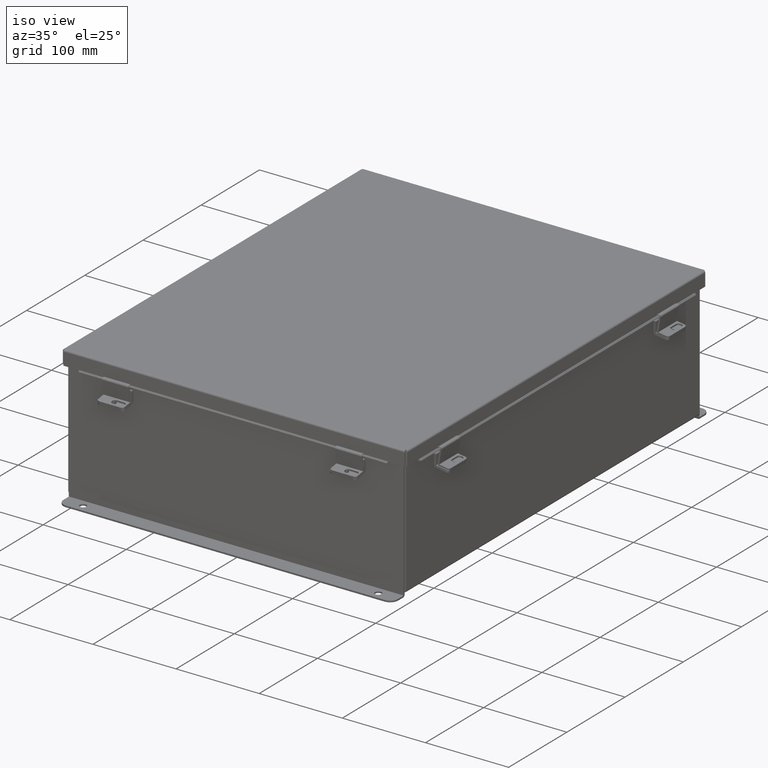
[diagram: clean part render]
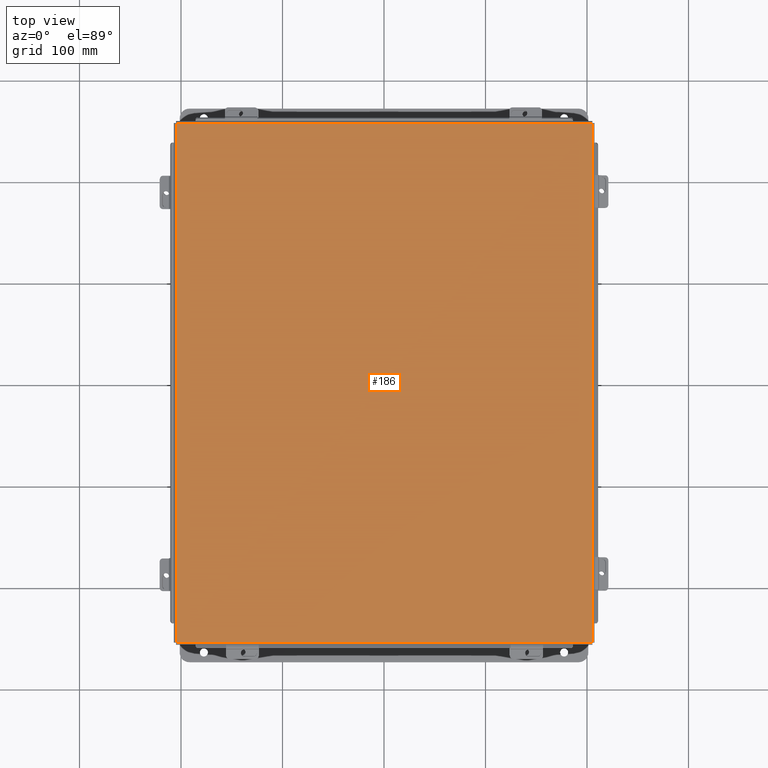
[diagram: tour spotlight — one face highlighted and labeled with its STEP entity id]
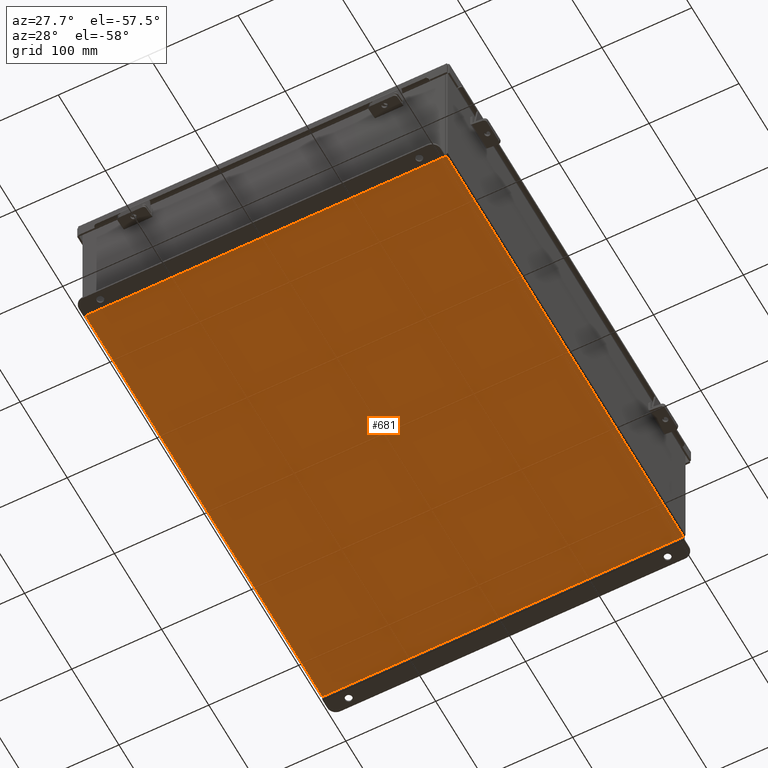
[diagram: tour spotlight — one face highlighted and labeled with its STEP entity id]
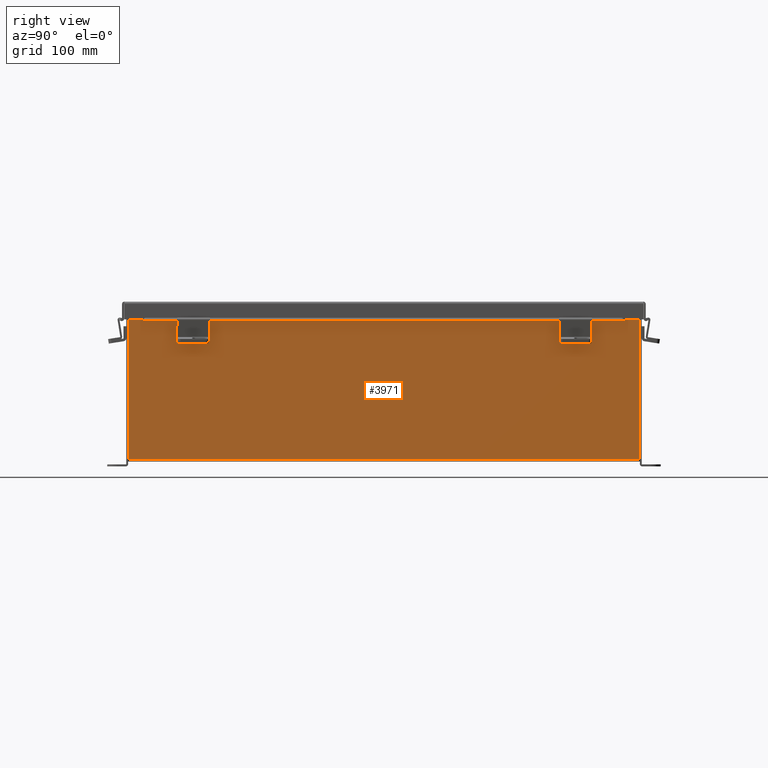
[diagram: tour spotlight — one face highlighted and labeled with its STEP entity id]
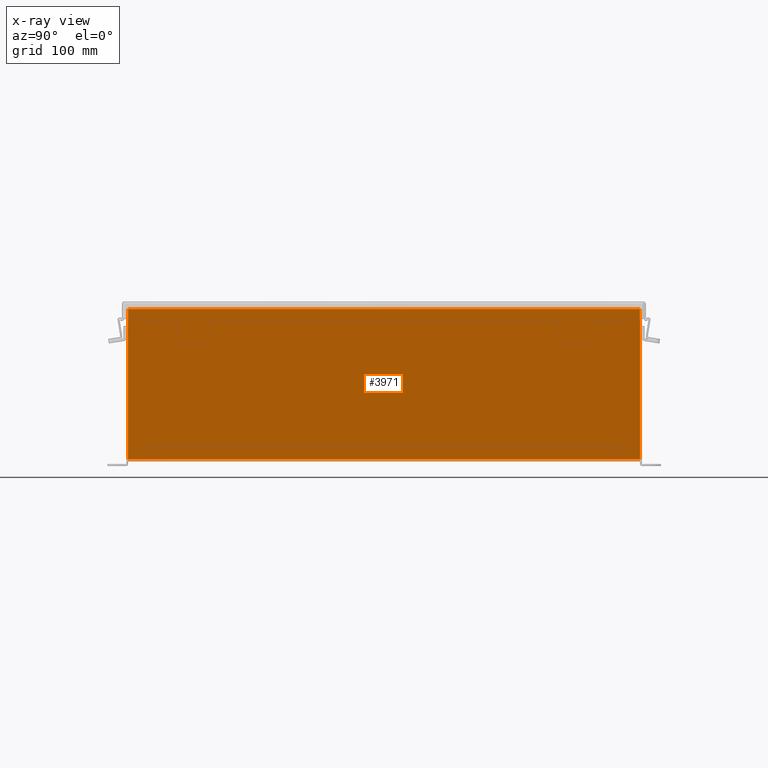
[diagram: x-ray of the same camera — body ghosted, this tour face saturated]
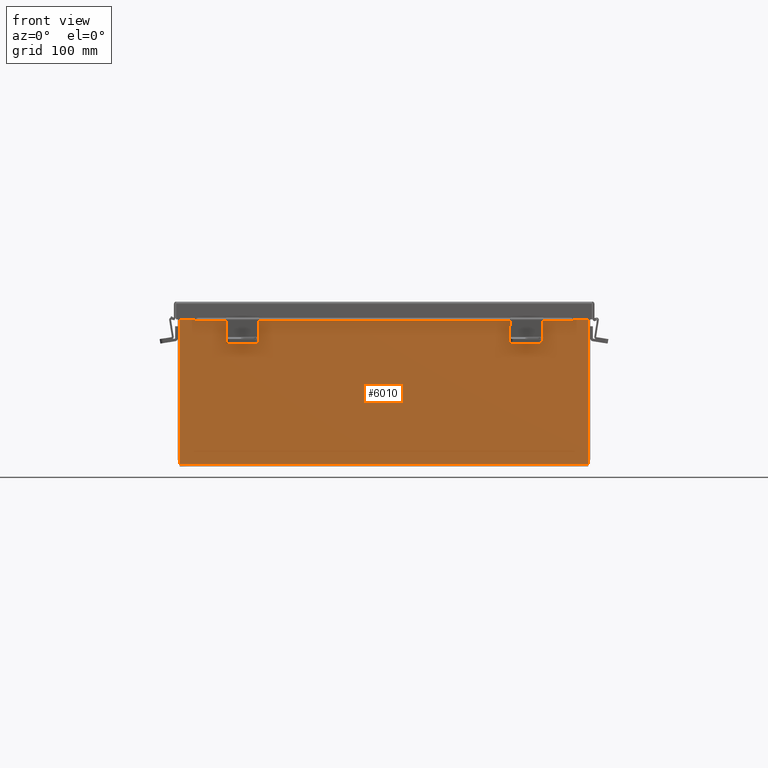
[diagram: tour spotlight — one face highlighted and labeled with its STEP entity id]
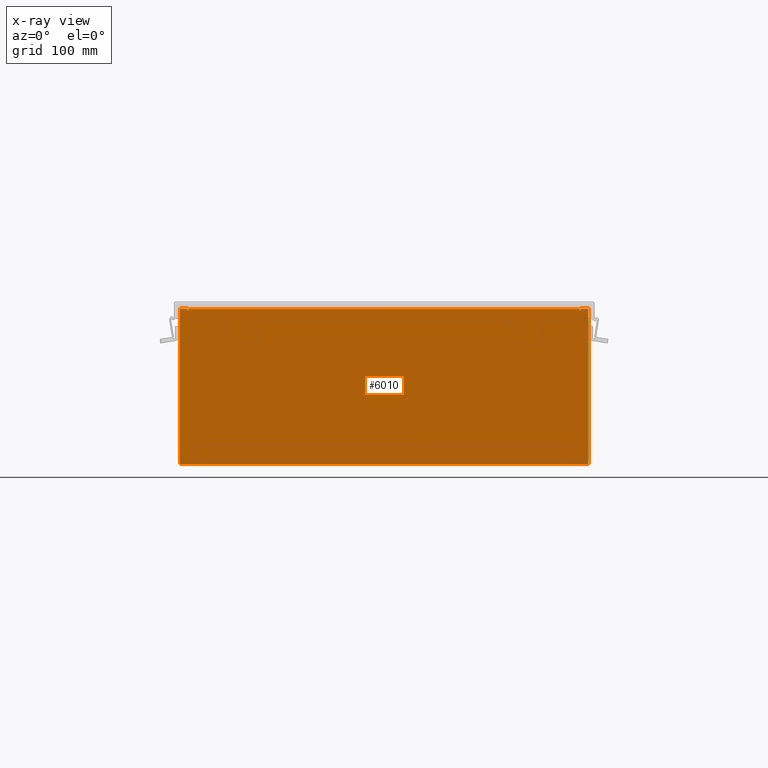
[diagram: x-ray of the same camera — body ghosted, this tour face saturated]
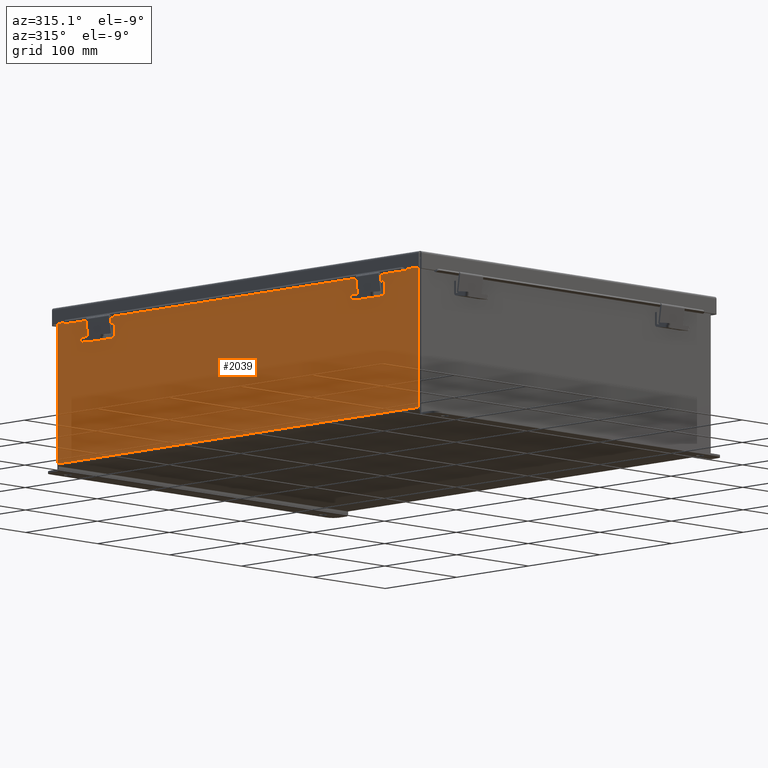
[diagram: tour spotlight — one face highlighted and labeled with its STEP entity id]
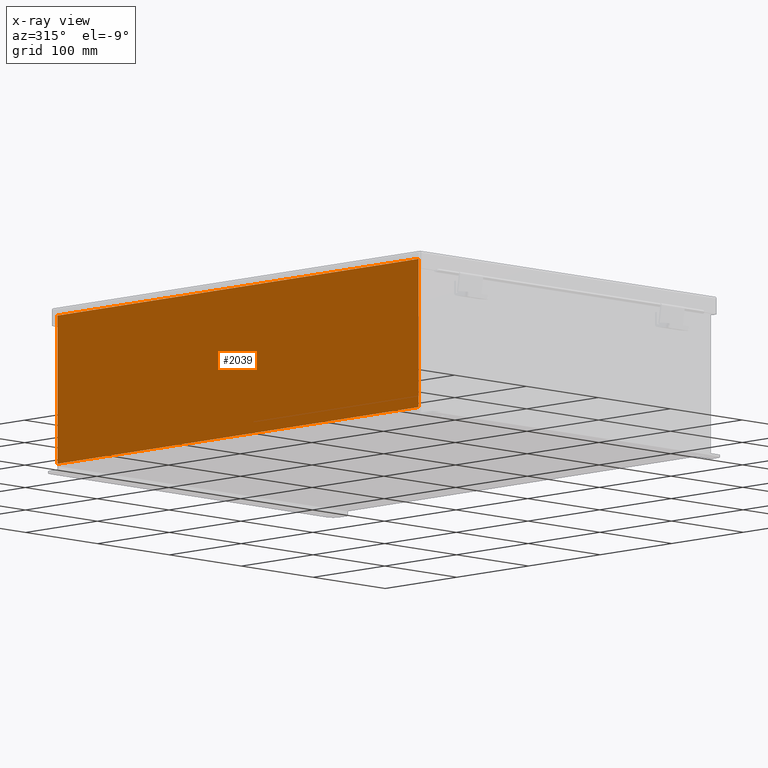
[diagram: x-ray of the same camera — body ghosted, this tour face saturated]
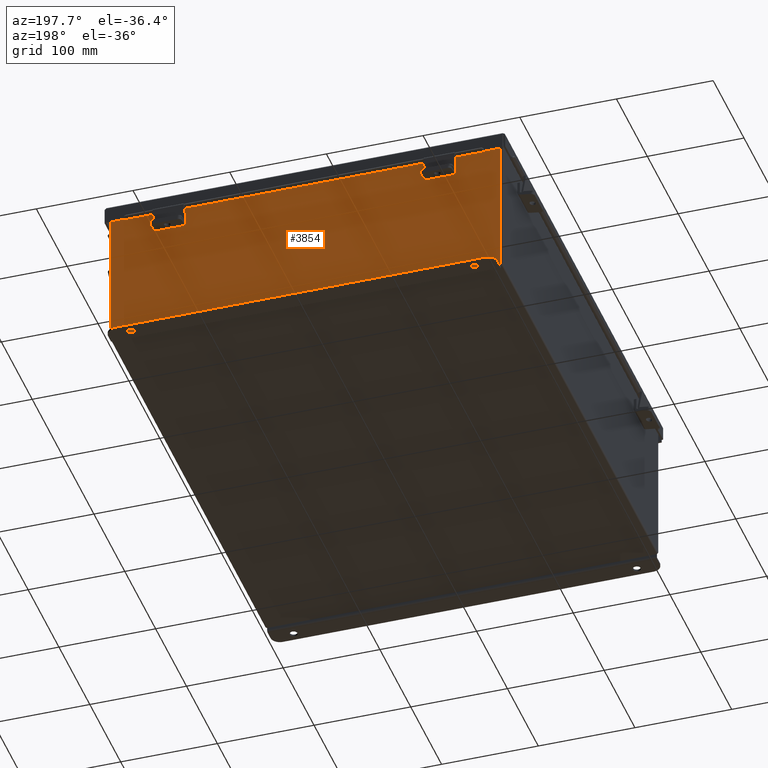
[diagram: tour spotlight — one face highlighted and labeled with its STEP entity id]
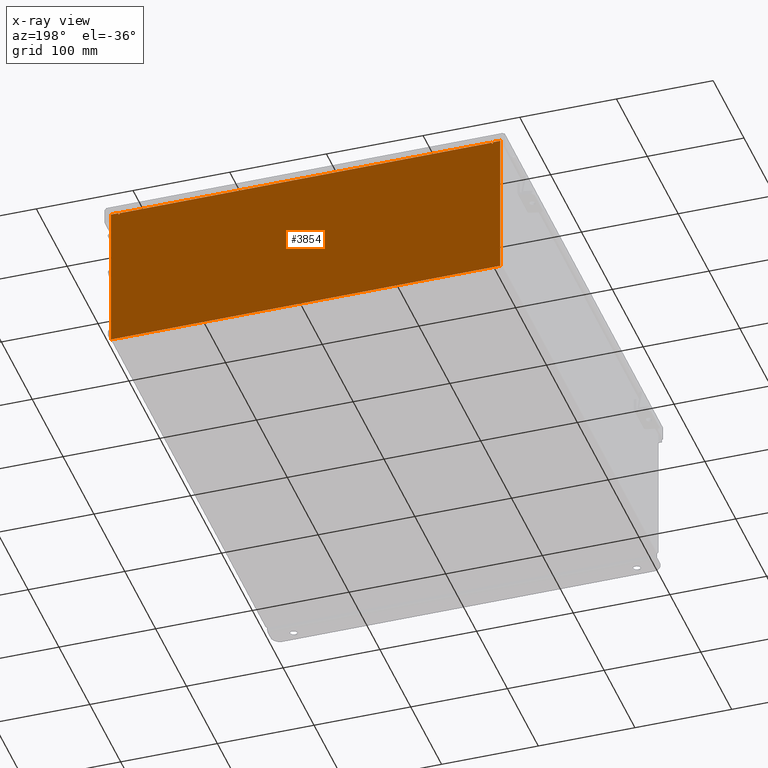
[diagram: x-ray of the same camera — body ghosted, this tour face saturated]
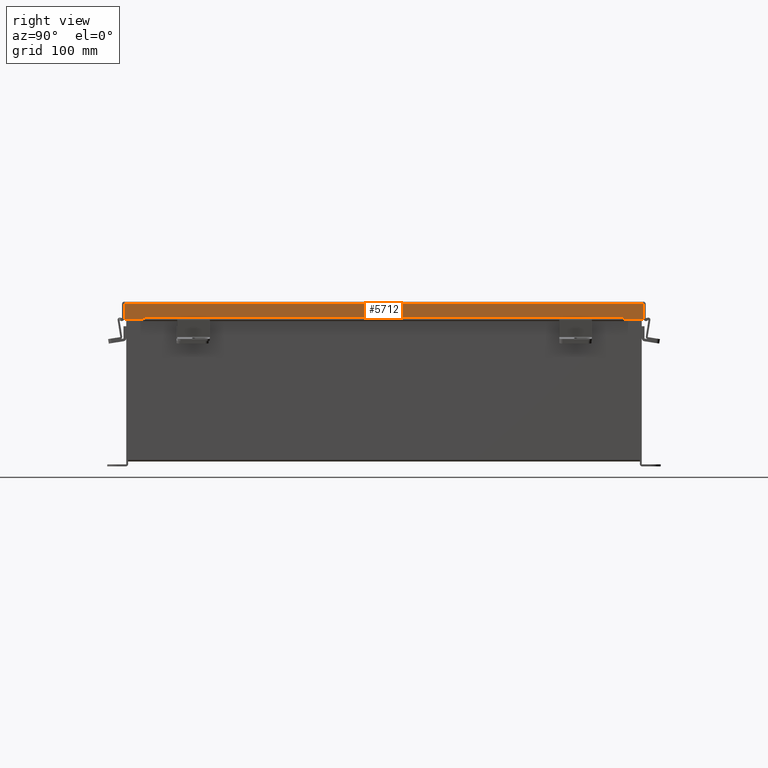
[diagram: tour spotlight — one face highlighted and labeled with its STEP entity id]
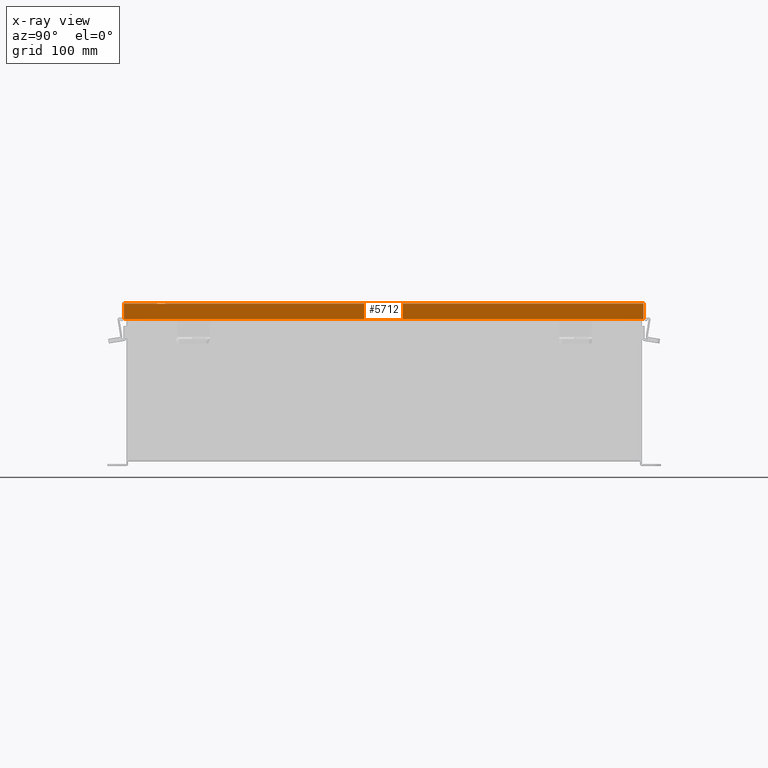
[diagram: x-ray of the same camera — body ghosted, this tour face saturated]
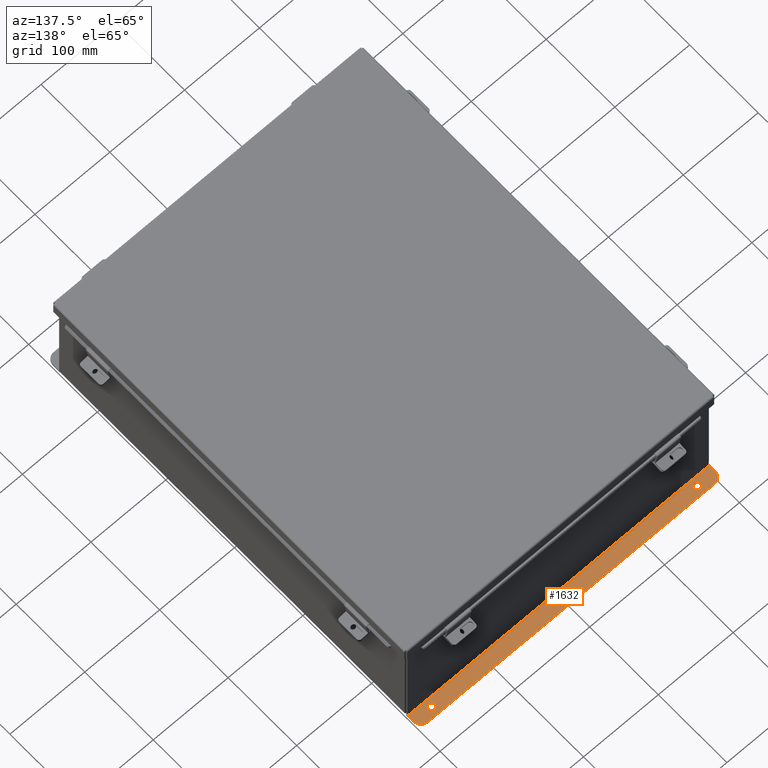
[diagram: tour spotlight — one face highlighted and labeled with its STEP entity id]
A machine part: a face-by-face anatomy tour. The part has 640 B-rep faces; the first image is the clean iso view, then the 8 largest visible faces are spotlighted one at a time (largest first), each with its STEP entity span.

Face 1 — top view, entity #186. In plain terms, the highlighted planar face has unit normal (-0, -0, 1).
Definition (entity closure, byte-faithful):
#65 = DIRECTION ( 'NONE',  ( 1.000000000000000000, 3.215975411700707400E-030, -0.0000000000000000000 ) ) ;
#186 = ADVANCED_FACE ( 'NONE', ( #5700 ), #8007, .T. ) ;
#723 = LINE ( 'NONE', #8862, #6271 ) ;
#746 = CARTESIAN_POINT ( 'NONE',  ( -8.074478932188169400, 10.06854999999999800, -0.07470000000000015500 ) ) ;
#1044 = CARTESIAN_POINT ( 'NONE',  ( -8.068550000000033900, -10.07447893218813400, -0.07470000000000015500 ) ) ;
#2038 = VERTEX_POINT ( 'NONE', #8754 ) ;
#2480 = CARTESIAN_POINT ( 'NONE',  ( 8.068550000000033900, 10.06854999999999800, -0.07470000000000015500 ) ) ;
#2708 = VERTEX_POINT ( 'NONE', #7890 ) ;
#2806 = ORIENTED_EDGE ( 'NONE', *, *, #8138, .T. ) ;
#3111 = ORIENTED_EDGE ( 'NONE', *, *, #5106, .T. ) ;
#3327 = DIRECTION ( 'NONE',  ( 3.166671605124525800E-030, 1.000000000000000000, 1.853823127269377700E-029 ) ) ;
#3398 = DIRECTION ( 'NONE',  ( 5.938065620492508100E-059, -1.846427556282924300E-029, -1.000000000000000000 ) ) ;
#3434 = VERTEX_POINT ( 'NONE', #8569 ) ;
#3678 = CARTESIAN_POINT ( 'NONE',  ( 0.0000000000000000000, 0.0000000000000000000, -0.07470000000000015500 ) ) ;
#3693 = CARTESIAN_POINT ( 'NONE',  ( 8.074478932188169400, -10.06854999999999800, -0.07470000000000015500 ) ) ;
#4070 = EDGE_CURVE ( 'NONE', #2038, #9112, #5077, .T. ) ;
#4924 = VECTOR ( 'NONE', #3327, 39.37007874015748100 ) ;
#5077 = LINE ( 'NONE', #746, #5451 ) ;
#5106 = EDGE_CURVE ( 'NONE', #3434, #2708, #8555, .T. ) ;
#5451 = VECTOR ( 'NONE', #65, 39.37007874015748100 ) ;
#5700 = FACE_OUTER_BOUND ( 'NONE', #6659, .T. ) ;
#5928 = ORIENTED_EDGE ( 'NONE', *, *, #8311, .T. ) ;
#6271 = VECTOR ( 'NONE', #9599, 39.37007874015748100 ) ;
#6484 = VECTOR ( 'NONE', #9021, 39.37007874015748100 ) ;
#6659 = EDGE_LOOP ( 'NONE', ( #6872, #5928, #3111, #2806 ) ) ;
#6872 = ORIENTED_EDGE ( 'NONE', *, *, #4070, .T. ) ;
#6931 = DIRECTION ( 'NONE',  ( -1.000000000000000000, -3.215975411700707400E-030, 0.0000000000000000000 ) ) ;
#7890 = CARTESIAN_POINT ( 'NONE',  ( -8.068550000000033900, -10.06854999999999800, -0.07470000000000015500 ) ) ;
#8007 = PLANE ( 'NONE',  #9439 ) ;
#8138 = EDGE_CURVE ( 'NONE', #2708, #2038, #8638, .T. ) ;
#8311 = EDGE_CURVE ( 'NONE', #9112, #3434, #723, .T. ) ;
#8555 = LINE ( 'NONE', #3693, #6484 ) ;
#8569 = CARTESIAN_POINT ( 'NONE',  ( 8.068550000000033900, -10.06854999999999800, -0.07470000000000015500 ) ) ;
#8638 = LINE ( 'NONE', #1044, #4924 ) ;
#8754 = CARTESIAN_POINT ( 'NONE',  ( -8.068550000000033900, 10.06854999999999800, -0.07470000000000015500 ) ) ;
#8862 = CARTESIAN_POINT ( 'NONE',  ( 8.068550000000033900, 10.07447893218813400, -0.07470000000000015500 ) ) ;
#9021 = DIRECTION ( 'NONE',  ( -1.000000000000000000, -3.215975411700707400E-030, -0.0000000000000000000 ) ) ;
#9112 = VERTEX_POINT ( 'NONE', #2480 ) ;
#9439 = AXIS2_PLACEMENT_3D ( 'NONE', #3678, #3398, #6931 ) ;
#9599 = DIRECTION ( 'NONE',  ( -3.166671605124525800E-030, -1.000000000000000000, -1.853823127269377700E-029 ) ) ;

Face 2 — auxiliary view, entity #681. In plain terms, the highlighted planar face has unit normal (0, 0, -1).
Definition (entity closure, byte-faithful):
#188 = EDGE_LOOP ( 'NONE', ( #7021, #8849, #7806, #4495 ) ) ;
#681 = ADVANCED_FACE ( 'NONE', ( #5187 ), #1109, .T. ) ;
#847 = LINE ( 'NONE', #4575, #1722 ) ;
#1109 = PLANE ( 'NONE',  #4463 ) ;
#1431 = CARTESIAN_POINT ( 'NONE',  ( -7.999999999999996400, -9.925299999999998200, -0.07470000000000000300 ) ) ;
#1505 = CARTESIAN_POINT ( 'NONE',  ( 7.912300000000002800, -9.925300000000000000, -0.07470000000000000300 ) ) ;
#1722 = VECTOR ( 'NONE', #7695, 39.37007874015748100 ) ;
#2049 = VECTOR ( 'NONE', #4949, 39.37007874015748100 ) ;
#3613 = DIRECTION ( 'NONE',  ( -1.000000000000000000, 0.0000000000000000000, -0.0000000000000000000 ) ) ;
#3631 = CARTESIAN_POINT ( 'NONE',  ( -7.912299999999996600, 9.925299999999998200, -0.07470000000000000300 ) ) ;
#4463 = AXIS2_PLACEMENT_3D ( 'NONE', #7838, #5098, #3613 ) ;
#4495 = ORIENTED_EDGE ( 'NONE', *, *, #7223, .T. ) ;
#4497 = DIRECTION ( 'NONE',  ( -1.000000000000000000, -0.0000000000000000000, -0.0000000000000000000 ) ) ;
#4572 = LINE ( 'NONE', #9044, #9524 ) ;
#4575 = CARTESIAN_POINT ( 'NONE',  ( -7.912299999999996600, -9.925299999999998200, -0.07470000000000130700 ) ) ;
#4597 = EDGE_CURVE ( 'NONE', #8433, #5526, #6334, .T. ) ;
#4949 = DIRECTION ( 'NONE',  ( -0.0000000000000000000, -1.000000000000000000, -0.0000000000000000000 ) ) ;
#5098 = DIRECTION ( 'NONE',  ( 0.0000000000000000000, 0.0000000000000000000, -1.000000000000000000 ) ) ;
#5187 = FACE_OUTER_BOUND ( 'NONE', #188, .T. ) ;
#5412 = CARTESIAN_POINT ( 'NONE',  ( -7.912299999999996600, -9.925299999999998200, -0.07470000000000130700 ) ) ;
#5526 = VERTEX_POINT ( 'NONE', #1505 ) ;
#5726 = VECTOR ( 'NONE', #6855, 39.37007874015748100 ) ;
#6334 = LINE ( 'NONE', #7375, #2049 ) ;
#6406 = VERTEX_POINT ( 'NONE', #3631 ) ;
#6485 = EDGE_CURVE ( 'NONE', #8927, #5526, #9795, .T. ) ;
#6855 = DIRECTION ( 'NONE',  ( 1.000000000000000000, -1.365923996832131600E-016, 0.0000000000000000000 ) ) ;
#7021 = ORIENTED_EDGE ( 'NONE', *, *, #9467, .F. ) ;
#7223 = EDGE_CURVE ( 'NONE', #8927, #6406, #847, .T. ) ;
#7375 = CARTESIAN_POINT ( 'NONE',  ( 7.912300000000002800, 9.925299999999996500, -0.07469999999999994700 ) ) ;
#7475 = CARTESIAN_POINT ( 'NONE',  ( 7.912300000000002800, 9.925299999999992900, -0.07469999999999994700 ) ) ;
#7695 = DIRECTION ( 'NONE',  ( -0.0000000000000000000, 1.000000000000000000, 8.208677865577646300E-017 ) ) ;
#7806 = ORIENTED_EDGE ( 'NONE', *, *, #6485, .F. ) ;
#7838 = CARTESIAN_POINT ( 'NONE',  ( 0.0000000000000000000, 0.0000000000000000000, -0.07470000000000000300 ) ) ;
#8433 = VERTEX_POINT ( 'NONE', #7475 ) ;
#8849 = ORIENTED_EDGE ( 'NONE', *, *, #4597, .T. ) ;
#8927 = VERTEX_POINT ( 'NONE', #5412 ) ;
#9044 = CARTESIAN_POINT ( 'NONE',  ( -7.999999999999996400, 9.925299999999998200, -0.07470000000000000300 ) ) ;
#9467 = EDGE_CURVE ( 'NONE', #8433, #6406, #4572, .T. ) ;
#9524 = VECTOR ( 'NONE', #4497, 39.37007874015748100 ) ;
#9795 = LINE ( 'NONE', #1431, #5726 ) ;

Face 3 — right view, entity #3971. An x-ray twin of the same camera follows (body ghosted, this face saturated) — the face is partly hidden behind the body. In plain terms, the highlighted planar face has unit normal (-1, 0, 0).
Definition (entity closure, byte-faithful):
#285 = ORIENTED_EDGE ( 'NONE', *, *, #7902, .T. ) ;
#356 = LINE ( 'NONE', #5002, #7728 ) ;
#579 = VERTEX_POINT ( 'NONE', #9544 ) ;
#756 = CARTESIAN_POINT ( 'NONE',  ( 8.000000000000003600, 0.0000000000000000000, -2.865025583355396000E-014 ) ) ;
#797 = EDGE_CURVE ( 'NONE', #4799, #3763, #356, .T. ) ;
#973 = CARTESIAN_POINT ( 'NONE',  ( 8.000000000000023100, -9.925300000000000000, 5.837600000000000100 ) ) ;
#1256 = ORIENTED_EDGE ( 'NONE', *, *, #2774, .T. ) ;
#1536 = CARTESIAN_POINT ( 'NONE',  ( 8.000000000000003600, 9.925299999999998200, -2.494518699214680400E-014 ) ) ;
#1658 = EDGE_CURVE ( 'NONE', #3902, #3763, #3233, .T. ) ;
#2080 = PLANE ( 'NONE',  #9258 ) ;
#2293 = CARTESIAN_POINT ( 'NONE',  ( 8.000000000000023100, 9.925299999999996500, 5.837600000000000100 ) ) ;
#2320 = LINE ( 'NONE', #1536, #6402 ) ;
#2774 = EDGE_CURVE ( 'NONE', #3902, #579, #2320, .T. ) ;
#2872 = CARTESIAN_POINT ( 'NONE',  ( 8.000000000000003600, -9.925300000000000000, 0.01299999999999984300 ) ) ;
#2876 = ORIENTED_EDGE ( 'NONE', *, *, #1658, .F. ) ;
#3233 = LINE ( 'NONE', #6435, #5212 ) ;
#3729 = DIRECTION ( 'NONE',  ( 3.548703509357741000E-015, 0.0000000000000000000, 1.000000000000000000 ) ) ;
#3763 = VERTEX_POINT ( 'NONE', #2872 ) ;
#3902 = VERTEX_POINT ( 'NONE', #8609 ) ;
#3971 = ADVANCED_FACE ( 'NONE', ( #4232 ), #2080, .F. ) ;
#4126 = DIRECTION ( 'NONE',  ( -0.0000000000000000000, -1.000000000000000000, -0.0000000000000000000 ) ) ;
#4232 = FACE_OUTER_BOUND ( 'NONE', #4464, .T. ) ;
#4464 = EDGE_LOOP ( 'NONE', ( #285, #8733, #2876, #1256 ) ) ;
#4799 = VERTEX_POINT ( 'NONE', #973 ) ;
#5002 = CARTESIAN_POINT ( 'NONE',  ( 8.000000000000003600, -9.925300000000000000, -2.865025583355396000E-014 ) ) ;
#5212 = VECTOR ( 'NONE', #4126, 39.37007874015748100 ) ;
#5510 = LINE ( 'NONE', #2293, #9348 ) ;
#5988 = DIRECTION ( 'NONE',  ( -3.548703509357741800E-015, 0.0000000000000000000, -1.000000000000000000 ) ) ;
#6402 = VECTOR ( 'NONE', #8744, 39.37007874015748100 ) ;
#6435 = CARTESIAN_POINT ( 'NONE',  ( 8.000000000000003600, -9.925300000000000000, 0.01299999999999984300 ) ) ;
#6994 = DIRECTION ( 'NONE',  ( -0.0000000000000000000, -1.000000000000000000, -0.0000000000000000000 ) ) ;
#7728 = VECTOR ( 'NONE', #5988, 39.37007874015748100 ) ;
#7902 = EDGE_CURVE ( 'NONE', #579, #4799, #5510, .T. ) ;
#8609 = CARTESIAN_POINT ( 'NONE',  ( 8.000000000000003600, 9.925299999999992900, 0.01299999999999984300 ) ) ;
#8733 = ORIENTED_EDGE ( 'NONE', *, *, #797, .T. ) ;
#8744 = DIRECTION ( 'NONE',  ( 3.548703509357741800E-015, -3.735477378271307500E-016, 1.000000000000000000 ) ) ;
#8920 = DIRECTION ( 'NONE',  ( -1.000000000000000000, 0.0000000000000000000, 3.548703509357741000E-015 ) ) ;
#9258 = AXIS2_PLACEMENT_3D ( 'NONE', #756, #8920, #3729 ) ;
#9348 = VECTOR ( 'NONE', #6994, 39.37007874015748100 ) ;
#9544 = CARTESIAN_POINT ( 'NONE',  ( 8.000000000000023100, 9.925299999999992900, 5.837600000000000100 ) ) ;

Face 4 — front view, entity #6010. An x-ray twin of the same camera follows (body ghosted, this face saturated) — the face is partly hidden behind the body. In plain terms, the highlighted planar face has unit normal (-0, 1, -0).
Definition (entity closure, byte-faithful):
#141 = ORIENTED_EDGE ( 'NONE', *, *, #464, .T. ) ;
#335 = DIRECTION ( 'NONE',  ( 0.0000000000000000000, 0.0000000000000000000, -1.000000000000000000 ) ) ;
#443 = ORIENTED_EDGE ( 'NONE', *, *, #8083, .F. ) ;
#451 = CIRCLE ( 'NONE', #3308, 0.01867500000000003900 ) ;
#464 = EDGE_CURVE ( 'NONE', #855, #5547, #581, .T. ) ;
#581 = LINE ( 'NONE', #3582, #6182 ) ;
#682 = LINE ( 'NONE', #3984, #5334 ) ;
#690 = DIRECTION ( 'NONE',  ( 1.000000000000000000, 4.910036603141682400E-031, 0.0000000000000000000 ) ) ;
#855 = VERTEX_POINT ( 'NONE', #2203 ) ;
#931 = EDGE_CURVE ( 'NONE', #2379, #7446, #3783, .T. ) ;
#1009 = LINE ( 'NONE', #7984, #1018 ) ;
#1018 = VECTOR ( 'NONE', #1776, 39.37007874015748100 ) ;
#1216 = VECTOR ( 'NONE', #4686, 39.37007874015748100 ) ;
#1630 = VERTEX_POINT ( 'NONE', #5949 ) ;
#1776 = DIRECTION ( 'NONE',  ( 1.000000000000000000, 4.910036603141682400E-031, -0.0000000000000000000 ) ) ;
#1849 = CARTESIAN_POINT ( 'NONE',  ( -7.582299999999992900, 0.0000000000000000000, 2.874949999999997900 ) ) ;
#1858 = AXIS2_PLACEMENT_3D ( 'NONE', #9303, #7126, #2421 ) ;
#2116 = CARTESIAN_POINT ( 'NONE',  ( 7.600975000000005400, 0.0000000000000000000, 2.874949999999997900 ) ) ;
#2118 = LINE ( 'NONE', #9217, #1216 ) ;
#2203 = CARTESIAN_POINT ( 'NONE',  ( 7.925300000000007100, 0.0000000000000000000, 2.925300000000000000 ) ) ;
#2375 = FACE_OUTER_BOUND ( 'NONE', #9448, .T. ) ;
#2379 = VERTEX_POINT ( 'NONE', #7465 ) ;
#2413 = VECTOR ( 'NONE', #4748, 39.37007874015748100 ) ;
#2421 = DIRECTION ( 'NONE',  ( 0.0000000000000000000, 0.0000000000000000000, -1.000000000000000000 ) ) ;
#2474 = CIRCLE ( 'NONE', #4613, 0.01867500000000003900 ) ;
#2592 = VECTOR ( 'NONE', #6755, 39.37007874015748100 ) ;
#2662 = LINE ( 'NONE', #6123, #7717 ) ;
#2697 = VERTEX_POINT ( 'NONE', #1849 ) ;
#2830 = VERTEX_POINT ( 'NONE', #8563 ) ;
#2864 = DIRECTION ( 'NONE',  ( 4.910036603141682400E-031, 1.000000000000000000, -0.0000000000000000000 ) ) ;
#3032 = LINE ( 'NONE', #3657, #2413 ) ;
#3152 = PLANE ( 'NONE',  #1858 ) ;
#3195 = CARTESIAN_POINT ( 'NONE',  ( 7.925300000000007100, 0.0000000000000000000, -3.099299999999999900 ) ) ;
#3199 = EDGE_CURVE ( 'NONE', #7358, #1630, #3032, .T. ) ;
#3214 = DIRECTION ( 'NONE',  ( 1.000000000000000000, 4.910036603141682400E-031, 0.0000000000000000000 ) ) ;
#3308 = AXIS2_PLACEMENT_3D ( 'NONE', #6634, #6942, #335 ) ;
#3395 = EDGE_CURVE ( 'NONE', #2697, #7358, #451, .T. ) ;
#3514 = LINE ( 'NONE', #5953, #9433 ) ;
#3582 = CARTESIAN_POINT ( 'NONE',  ( 7.925300000000007100, 0.0000000000000000000, 2.925300000000000000 ) ) ;
#3606 = EDGE_CURVE ( 'NONE', #5729, #6686, #2474, .T. ) ;
#3657 = CARTESIAN_POINT ( 'NONE',  ( -7.619650000000001800, 0.0000000000000000000, 0.0000000000000000000 ) ) ;
#3699 = VECTOR ( 'NONE', #9381, 39.37007874015748100 ) ;
#3783 = LINE ( 'NONE', #9075, #2592 ) ;
#3984 = CARTESIAN_POINT ( 'NONE',  ( -7.925299999999992000, 0.0000000000000000000, 2.925300000000000000 ) ) ;
#4129 = CARTESIAN_POINT ( 'NONE',  ( 7.582300000000006300, 0.0000000000000000000, 2.912299999999998800 ) ) ;
#4338 = DIRECTION ( 'NONE',  ( 0.0000000000000000000, 0.0000000000000000000, -1.000000000000000000 ) ) ;
#4499 = LINE ( 'NONE', #7173, #3699 ) ;
#4613 = AXIS2_PLACEMENT_3D ( 'NONE', #2116, #2864, #6127 ) ;
#4686 = DIRECTION ( 'NONE',  ( 0.0000000000000000000, 0.0000000000000000000, -1.000000000000000000 ) ) ;
#4748 = DIRECTION ( 'NONE',  ( 0.0000000000000000000, 0.0000000000000000000, 1.000000000000000000 ) ) ;
#4936 = ORIENTED_EDGE ( 'NONE', *, *, #3606, .F. ) ;
#5021 = ORIENTED_EDGE ( 'NONE', *, *, #3199, .F. ) ;
#5171 = DIRECTION ( 'NONE',  ( 0.0000000000000000000, 0.0000000000000000000, 1.000000000000000000 ) ) ;
#5334 = VECTOR ( 'NONE', #3214, 39.37007874015748100 ) ;
#5536 = ORIENTED_EDGE ( 'NONE', *, *, #9539, .T. ) ;
#5547 = VERTEX_POINT ( 'NONE', #3195 ) ;
#5729 = VERTEX_POINT ( 'NONE', #8797 ) ;
#5807 = VECTOR ( 'NONE', #9079, 39.37007874015748100 ) ;
#5949 = CARTESIAN_POINT ( 'NONE',  ( -7.619649999999992900, 0.0000000000000000000, 2.925300000000000000 ) ) ;
#5953 = CARTESIAN_POINT ( 'NONE',  ( 7.582299999999997400, 0.0000000000000000000, 0.0000000000000000000 ) ) ;
#6010 = ADVANCED_FACE ( 'NONE', ( #2375 ), #3152, .F. ) ;
#6123 = CARTESIAN_POINT ( 'NONE',  ( -7.925299999999992000, 0.0000000000000000000, 2.925300000000000000 ) ) ;
#6127 = DIRECTION ( 'NONE',  ( 0.0000000000000000000, 0.0000000000000000000, -1.000000000000000000 ) ) ;
#6169 = ORIENTED_EDGE ( 'NONE', *, *, #9574, .F. ) ;
#6182 = VECTOR ( 'NONE', #4338, 39.37007874015748100 ) ;
#6236 = ORIENTED_EDGE ( 'NONE', *, *, #3395, .F. ) ;
#6278 = CARTESIAN_POINT ( 'NONE',  ( 7.582300000000006300, 0.0000000000000000000, 2.874949999999997900 ) ) ;
#6634 = CARTESIAN_POINT ( 'NONE',  ( -7.600974999999992900, 0.0000000000000000000, 2.874949999999997900 ) ) ;
#6686 = VERTEX_POINT ( 'NONE', #6278 ) ;
#6723 = ORIENTED_EDGE ( 'NONE', *, *, #8607, .F. ) ;
#6755 = DIRECTION ( 'NONE',  ( 0.0000000000000000000, 0.0000000000000000000, 1.000000000000000000 ) ) ;
#6942 = DIRECTION ( 'NONE',  ( 4.910036603141682400E-031, 1.000000000000000000, -0.0000000000000000000 ) ) ;
#7069 = CARTESIAN_POINT ( 'NONE',  ( -7.619649999999992000, 0.0000000000000000000, 2.874949999999997900 ) ) ;
#7126 = DIRECTION ( 'NONE',  ( -4.910036603141682400E-031, -1.000000000000000000, -0.0000000000000000000 ) ) ;
#7173 = CARTESIAN_POINT ( 'NONE',  ( -7.582299999999992900, 2.185478394931410600E-015, 2.912299999999998800 ) ) ;
#7245 = ORIENTED_EDGE ( 'NONE', *, *, #9101, .T. ) ;
#7358 = VERTEX_POINT ( 'NONE', #7069 ) ;
#7446 = VERTEX_POINT ( 'NONE', #8592 ) ;
#7465 = CARTESIAN_POINT ( 'NONE',  ( -7.925299999999992000, 0.0000000000000000000, -3.099299999999999900 ) ) ;
#7509 = EDGE_CURVE ( 'NONE', #2830, #8152, #4499, .T. ) ;
#7521 = ORIENTED_EDGE ( 'NONE', *, *, #9001, .F. ) ;
#7659 = CARTESIAN_POINT ( 'NONE',  ( -7.582300000000001800, 0.0000000000000000000, 0.0000000000000000000 ) ) ;
#7717 = VECTOR ( 'NONE', #690, 39.37007874015748100 ) ;
#7984 = CARTESIAN_POINT ( 'NONE',  ( -7.925299999999992000, 0.0000000000000000000, -3.099299999999999900 ) ) ;
#8083 = EDGE_CURVE ( 'NONE', #2379, #5547, #1009, .T. ) ;
#8152 = VERTEX_POINT ( 'NONE', #4129 ) ;
#8189 = ORIENTED_EDGE ( 'NONE', *, *, #7509, .T. ) ;
#8563 = CARTESIAN_POINT ( 'NONE',  ( -7.582299999999992900, 2.185478394931410600E-015, 2.912299999999998800 ) ) ;
#8592 = CARTESIAN_POINT ( 'NONE',  ( -7.925299999999992000, 0.0000000000000000000, 2.925300000000000000 ) ) ;
#8607 = EDGE_CURVE ( 'NONE', #6686, #8152, #3514, .T. ) ;
#8797 = CARTESIAN_POINT ( 'NONE',  ( 7.619650000000005400, 0.0000000000000000000, 2.874949999999997900 ) ) ;
#9001 = EDGE_CURVE ( 'NONE', #9374, #5729, #2118, .T. ) ;
#9075 = CARTESIAN_POINT ( 'NONE',  ( -7.925299999999992000, 0.0000000000000000000, 2.925300000000000000 ) ) ;
#9079 = DIRECTION ( 'NONE',  ( 0.0000000000000000000, 0.0000000000000000000, -1.000000000000000000 ) ) ;
#9101 = EDGE_CURVE ( 'NONE', #9374, #855, #682, .T. ) ;
#9217 = CARTESIAN_POINT ( 'NONE',  ( 7.619649999999997400, 0.0000000000000000000, 0.0000000000000000000 ) ) ;
#9303 = CARTESIAN_POINT ( 'NONE',  ( 0.0000000000000000000, 0.0000000000000000000, 0.0000000000000000000 ) ) ;
#9374 = VERTEX_POINT ( 'NONE', #9592 ) ;
#9381 = DIRECTION ( 'NONE',  ( 1.000000000000000000, 4.910036603141682400E-031, -0.0000000000000000000 ) ) ;
#9433 = VECTOR ( 'NONE', #5171, 39.37007874015748100 ) ;
#9448 = EDGE_LOOP ( 'NONE', ( #5021, #6236, #6169, #8189, #6723, #4936, #7521, #7245, #141, #443, #9532, #5536 ) ) ;
#9532 = ORIENTED_EDGE ( 'NONE', *, *, #931, .T. ) ;
#9539 = EDGE_CURVE ( 'NONE', #7446, #1630, #2662, .T. ) ;
#9574 = EDGE_CURVE ( 'NONE', #2830, #2697, #9643, .T. ) ;
#9592 = CARTESIAN_POINT ( 'NONE',  ( 7.619650000000006300, 0.0000000000000000000, 2.925300000000000000 ) ) ;
#9643 = LINE ( 'NONE', #7659, #5807 ) ;

Face 5 — auxiliary view, entity #2039. An x-ray twin of the same camera follows (body ghosted, this face saturated) — the face is partly hidden behind the body. In plain terms, the highlighted planar face has unit normal (1, 0, 0).
Definition (entity closure, byte-faithful):
#105 = VERTEX_POINT ( 'NONE', #2000 ) ;
#215 = EDGE_CURVE ( 'NONE', #6068, #8190, #5944, .T. ) ;
#288 = ORIENTED_EDGE ( 'NONE', *, *, #2256, .T. ) ;
#403 = EDGE_LOOP ( 'NONE', ( #288, #3775, #3629, #8039 ) ) ;
#744 = DIRECTION ( 'NONE',  ( -1.953496330014866600E-031, 1.000000000000000000, 5.504816970095139000E-017 ) ) ;
#997 = CARTESIAN_POINT ( 'NONE',  ( -7.999999999999996400, -9.925299999999998200, -2.494518699214680400E-014 ) ) ;
#1552 = LINE ( 'NONE', #4000, #4240 ) ;
#1635 = LINE ( 'NONE', #4996, #7328 ) ;
#1768 = CARTESIAN_POINT ( 'NONE',  ( -7.999999999999996400, 9.925299999999998200, 0.01300000000000009800 ) ) ;
#1996 = EDGE_CURVE ( 'NONE', #6068, #5217, #5802, .T. ) ;
#2000 = CARTESIAN_POINT ( 'NONE',  ( -8.000000000000017800, 9.925299999999998200, 5.837599999999999200 ) ) ;
#2039 = ADVANCED_FACE ( 'NONE', ( #5861 ), #8653, .F. ) ;
#2256 = EDGE_CURVE ( 'NONE', #8190, #105, #1635, .T. ) ;
#2498 = CARTESIAN_POINT ( 'NONE',  ( -7.999999999999996400, -9.925299999999996500, 0.01299999999999875000 ) ) ;
#2559 = CARTESIAN_POINT ( 'NONE',  ( -7.999999999999996400, 0.0000000000000000000, -2.865025583355396000E-014 ) ) ;
#3174 = VECTOR ( 'NONE', #4424, 39.37007874015748100 ) ;
#3629 = ORIENTED_EDGE ( 'NONE', *, *, #1996, .F. ) ;
#3775 = ORIENTED_EDGE ( 'NONE', *, *, #6011, .T. ) ;
#4000 = CARTESIAN_POINT ( 'NONE',  ( -7.999999999999996400, 9.925299999999998200, -2.865025583355396000E-014 ) ) ;
#4240 = VECTOR ( 'NONE', #9343, 39.37007874015748100 ) ;
#4424 = DIRECTION ( 'NONE',  ( -3.548703509357741800E-015, 3.735477378271307500E-016, 1.000000000000000000 ) ) ;
#4996 = CARTESIAN_POINT ( 'NONE',  ( -8.000000000000017800, -9.925299999999998200, 5.837599999999999200 ) ) ;
#5217 = VERTEX_POINT ( 'NONE', #1768 ) ;
#5802 = LINE ( 'NONE', #8121, #6858 ) ;
#5861 = FACE_OUTER_BOUND ( 'NONE', #403, .T. ) ;
#5944 = LINE ( 'NONE', #997, #3174 ) ;
#6011 = EDGE_CURVE ( 'NONE', #105, #5217, #1552, .T. ) ;
#6068 = VERTEX_POINT ( 'NONE', #2498 ) ;
#6858 = VECTOR ( 'NONE', #744, 39.37007874015748100 ) ;
#7328 = VECTOR ( 'NONE', #9523, 39.37007874015748100 ) ;
#8031 = DIRECTION ( 'NONE',  ( 1.000000000000000000, 0.0000000000000000000, 3.548703509357741000E-015 ) ) ;
#8039 = ORIENTED_EDGE ( 'NONE', *, *, #215, .T. ) ;
#8121 = CARTESIAN_POINT ( 'NONE',  ( -7.999999999999996400, 9.925299999999998200, 0.01299999999999984300 ) ) ;
#8190 = VERTEX_POINT ( 'NONE', #9434 ) ;
#8653 = PLANE ( 'NONE',  #9213 ) ;
#9213 = AXIS2_PLACEMENT_3D ( 'NONE', #2559, #8031, #9776 ) ;
#9343 = DIRECTION ( 'NONE',  ( 3.548703509357741800E-015, 0.0000000000000000000, -1.000000000000000000 ) ) ;
#9434 = CARTESIAN_POINT ( 'NONE',  ( -8.000000000000017800, -9.925299999999996500, 5.837599999999999200 ) ) ;
#9523 = DIRECTION ( 'NONE',  ( 0.0000000000000000000, 1.000000000000000000, 0.0000000000000000000 ) ) ;
#9776 = DIRECTION ( 'NONE',  ( 3.548703509357741000E-015, 0.0000000000000000000, -1.000000000000000000 ) ) ;

Face 6 — auxiliary view, entity #3854. An x-ray twin of the same camera follows (body ghosted, this face saturated) — the face is partly hidden behind the body. In plain terms, the highlighted planar face has unit normal (0, -1, 0).
Definition (entity closure, byte-faithful):
#280 = DIRECTION ( 'NONE',  ( 0.0000000000000000000, 0.0000000000000000000, -1.000000000000000000 ) ) ;
#355 = ORIENTED_EDGE ( 'NONE', *, *, #7832, .F. ) ;
#373 = VERTEX_POINT ( 'NONE', #8989 ) ;
#416 = CARTESIAN_POINT ( 'NONE',  ( -7.582300000000001800, 4.370956789862821100E-015, 2.912299999999998300 ) ) ;
#437 = LINE ( 'NONE', #2971, #8628 ) ;
#550 = VERTEX_POINT ( 'NONE', #1832 ) ;
#730 = LINE ( 'NONE', #4032, #8091 ) ;
#826 = CARTESIAN_POINT ( 'NONE',  ( -7.925300000000000900, 0.0000000000000000000, 2.925299999999999600 ) ) ;
#849 = VECTOR ( 'NONE', #3661, 39.37007874015748100 ) ;
#1126 = CARTESIAN_POINT ( 'NONE',  ( 7.925299999999998200, 0.0000000000000000000, 2.925299999999999600 ) ) ;
#1141 = CARTESIAN_POINT ( 'NONE',  ( 7.925299999999998200, 0.0000000000000000000, 2.925299999999999600 ) ) ;
#1200 = CIRCLE ( 'NONE', #2387, 0.01867500000000003900 ) ;
#1328 = VECTOR ( 'NONE', #8136, 39.37007874015748100 ) ;
#1441 = LINE ( 'NONE', #1461, #3626 ) ;
#1443 = DIRECTION ( 'NONE',  ( 0.0000000000000000000, 0.0000000000000000000, -1.000000000000000000 ) ) ;
#1448 = AXIS2_PLACEMENT_3D ( 'NONE', #8240, #8712, #1443 ) ;
#1450 = ORIENTED_EDGE ( 'NONE', *, *, #8310, .T. ) ;
#1461 = CARTESIAN_POINT ( 'NONE',  ( -7.925300000000000900, 0.0000000000000000000, -3.099299999999999900 ) ) ;
#1525 = DIRECTION ( 'NONE',  ( 0.0000000000000000000, -0.0000000000000000000, -1.000000000000000000 ) ) ;
#1832 = CARTESIAN_POINT ( 'NONE',  ( 7.582299999999997400, 0.0000000000000000000, 2.912299999999998300 ) ) ;
#1937 = CARTESIAN_POINT ( 'NONE',  ( -7.582300000000001800, 0.0000000000000000000, 0.0000000000000000000 ) ) ;
#2126 = VERTEX_POINT ( 'NONE', #2625 ) ;
#2173 = ORIENTED_EDGE ( 'NONE', *, *, #7397, .F. ) ;
#2273 = CARTESIAN_POINT ( 'NONE',  ( -7.925300000000000900, 0.0000000000000000000, 2.925299999999999600 ) ) ;
#2387 = AXIS2_PLACEMENT_3D ( 'NONE', #9423, #4896, #280 ) ;
#2427 = VERTEX_POINT ( 'NONE', #5771 ) ;
#2490 = EDGE_CURVE ( 'NONE', #4353, #4388, #7086, .T. ) ;
#2542 = CARTESIAN_POINT ( 'NONE',  ( 0.0000000000000000000, 0.0000000000000000000, 0.0000000000000000000 ) ) ;
#2622 = EDGE_CURVE ( 'NONE', #2126, #3663, #4198, .T. ) ;
#2625 = CARTESIAN_POINT ( 'NONE',  ( -7.582300000000001800, 0.0000000000000000000, 2.874949999999998300 ) ) ;
#2632 = ORIENTED_EDGE ( 'NONE', *, *, #2490, .T. ) ;
#2681 = VERTEX_POINT ( 'NONE', #6146 ) ;
#2824 = LINE ( 'NONE', #826, #4920 ) ;
#2971 = CARTESIAN_POINT ( 'NONE',  ( -7.925300000000000900, 0.0000000000000000000, 2.925299999999999600 ) ) ;
#2981 = DIRECTION ( 'NONE',  ( 1.000000000000000000, -0.0000000000000000000, -0.0000000000000000000 ) ) ;
#3045 = DIRECTION ( 'NONE',  ( 0.0000000000000000000, 0.0000000000000000000, -1.000000000000000000 ) ) ;
#3138 = DIRECTION ( 'NONE',  ( 1.000000000000000000, 0.0000000000000000000, 0.0000000000000000000 ) ) ;
#3342 = EDGE_CURVE ( 'NONE', #4314, #2126, #7454, .T. ) ;
#3346 = CARTESIAN_POINT ( 'NONE',  ( -7.582300000000001800, 4.370956789862821100E-015, 2.912299999999998300 ) ) ;
#3626 = VECTOR ( 'NONE', #2981, 39.37007874015748100 ) ;
#3661 = DIRECTION ( 'NONE',  ( 0.0000000000000000000, 0.0000000000000000000, -1.000000000000000000 ) ) ;
#3663 = VERTEX_POINT ( 'NONE', #8534 ) ;
#3854 = ADVANCED_FACE ( 'NONE', ( #8549 ), #7881, .F. ) ;
#4032 = CARTESIAN_POINT ( 'NONE',  ( 7.582299999999997400, 0.0000000000000000000, 0.0000000000000000000 ) ) ;
#4038 = EDGE_CURVE ( 'NONE', #2427, #5178, #4461, .T. ) ;
#4159 = ORIENTED_EDGE ( 'NONE', *, *, #2622, .F. ) ;
#4198 = CIRCLE ( 'NONE', #1448, 0.01867500000000003900 ) ;
#4229 = LINE ( 'NONE', #1141, #849 ) ;
#4314 = VERTEX_POINT ( 'NONE', #3346 ) ;
#4334 = ORIENTED_EDGE ( 'NONE', *, *, #4038, .F. ) ;
#4353 = VERTEX_POINT ( 'NONE', #2273 ) ;
#4388 = VERTEX_POINT ( 'NONE', #6496 ) ;
#4400 = VECTOR ( 'NONE', #4891, 39.37007874015748100 ) ;
#4461 = LINE ( 'NONE', #6147, #4965 ) ;
#4515 = VERTEX_POINT ( 'NONE', #1126 ) ;
#4590 = DIRECTION ( 'NONE',  ( 0.0000000000000000000, -1.000000000000000000, 0.0000000000000000000 ) ) ;
#4844 = DIRECTION ( 'NONE',  ( 0.0000000000000000000, 0.0000000000000000000, 1.000000000000000000 ) ) ;
#4891 = DIRECTION ( 'NONE',  ( 0.0000000000000000000, 0.0000000000000000000, -1.000000000000000000 ) ) ;
#4896 = DIRECTION ( 'NONE',  ( -0.0000000000000000000, 1.000000000000000000, -0.0000000000000000000 ) ) ;
#4920 = VECTOR ( 'NONE', #3138, 39.37007874015748100 ) ;
#4965 = VECTOR ( 'NONE', #3045, 39.37007874015748100 ) ;
#5178 = VERTEX_POINT ( 'NONE', #8379 ) ;
#5293 = CARTESIAN_POINT ( 'NONE',  ( -7.925300000000000900, 0.0000000000000000000, 2.925299999999999600 ) ) ;
#5344 = EDGE_CURVE ( 'NONE', #4515, #373, #4229, .T. ) ;
#5351 = DIRECTION ( 'NONE',  ( -0.0000000000000000000, -0.0000000000000000000, 1.000000000000000000 ) ) ;
#5771 = CARTESIAN_POINT ( 'NONE',  ( 7.619649999999997400, 0.0000000000000000000, 2.925299999999999600 ) ) ;
#5858 = ORIENTED_EDGE ( 'NONE', *, *, #9050, .T. ) ;
#6146 = CARTESIAN_POINT ( 'NONE',  ( 7.582299999999997400, 0.0000000000000000000, 2.874949999999998300 ) ) ;
#6147 = CARTESIAN_POINT ( 'NONE',  ( 7.619649999999997400, 0.0000000000000000000, 0.0000000000000000000 ) ) ;
#6496 = CARTESIAN_POINT ( 'NONE',  ( -7.619650000000001800, 0.0000000000000000000, 2.925299999999999600 ) ) ;
#6840 = ORIENTED_EDGE ( 'NONE', *, *, #8861, .T. ) ;
#6845 = EDGE_CURVE ( 'NONE', #5178, #2681, #1200, .T. ) ;
#7086 = LINE ( 'NONE', #5293, #9702 ) ;
#7094 = VERTEX_POINT ( 'NONE', #9022 ) ;
#7339 = ORIENTED_EDGE ( 'NONE', *, *, #7534, .F. ) ;
#7397 = EDGE_CURVE ( 'NONE', #3663, #4388, #8309, .T. ) ;
#7454 = LINE ( 'NONE', #1937, #4400 ) ;
#7534 = EDGE_CURVE ( 'NONE', #2681, #550, #730, .T. ) ;
#7830 = CARTESIAN_POINT ( 'NONE',  ( -7.619650000000001800, 0.0000000000000000000, 0.0000000000000000000 ) ) ;
#7832 = EDGE_CURVE ( 'NONE', #7094, #373, #1441, .T. ) ;
#7872 = DIRECTION ( 'NONE',  ( 0.0000000000000000000, 0.0000000000000000000, 1.000000000000000000 ) ) ;
#7881 = PLANE ( 'NONE',  #8212 ) ;
#7943 = ORIENTED_EDGE ( 'NONE', *, *, #6845, .F. ) ;
#8091 = VECTOR ( 'NONE', #4844, 39.37007874015748100 ) ;
#8136 = DIRECTION ( 'NONE',  ( 1.000000000000000000, 0.0000000000000000000, 0.0000000000000000000 ) ) ;
#8212 = AXIS2_PLACEMENT_3D ( 'NONE', #2542, #4590, #1525 ) ;
#8238 = VECTOR ( 'NONE', #7872, 39.37007874015748100 ) ;
#8240 = CARTESIAN_POINT ( 'NONE',  ( -7.600975000000000900, 0.0000000000000000000, 2.874949999999998300 ) ) ;
#8290 = ORIENTED_EDGE ( 'NONE', *, *, #5344, .T. ) ;
#8309 = LINE ( 'NONE', #7830, #8238 ) ;
#8310 = EDGE_CURVE ( 'NONE', #4314, #550, #8520, .T. ) ;
#8379 = CARTESIAN_POINT ( 'NONE',  ( 7.619649999999996500, 0.0000000000000000000, 2.874949999999998300 ) ) ;
#8520 = LINE ( 'NONE', #416, #1328 ) ;
#8534 = CARTESIAN_POINT ( 'NONE',  ( -7.619650000000000900, 0.0000000000000000000, 2.874949999999998300 ) ) ;
#8549 = FACE_OUTER_BOUND ( 'NONE', #9487, .T. ) ;
#8628 = VECTOR ( 'NONE', #5351, 39.37007874015748100 ) ;
#8712 = DIRECTION ( 'NONE',  ( -0.0000000000000000000, 1.000000000000000000, -0.0000000000000000000 ) ) ;
#8861 = EDGE_CURVE ( 'NONE', #7094, #4353, #437, .T. ) ;
#8989 = CARTESIAN_POINT ( 'NONE',  ( 7.925299999999998200, 0.0000000000000000000, -3.099299999999999900 ) ) ;
#9022 = CARTESIAN_POINT ( 'NONE',  ( -7.925300000000000900, 0.0000000000000000000, -3.099299999999999900 ) ) ;
#9030 = ORIENTED_EDGE ( 'NONE', *, *, #3342, .F. ) ;
#9050 = EDGE_CURVE ( 'NONE', #2427, #4515, #2824, .T. ) ;
#9423 = CARTESIAN_POINT ( 'NONE',  ( 7.600974999999996500, 0.0000000000000000000, 2.874949999999998300 ) ) ;
#9487 = EDGE_LOOP ( 'NONE', ( #2173, #4159, #9030, #1450, #7339, #7943, #4334, #5858, #8290, #355, #6840, #2632 ) ) ;
#9552 = DIRECTION ( 'NONE',  ( 1.000000000000000000, 0.0000000000000000000, 0.0000000000000000000 ) ) ;
#9702 = VECTOR ( 'NONE', #9552, 39.37007874015748100 ) ;

Face 7 — right view, entity #5712. An x-ray twin of the same camera follows (body ghosted, this face saturated) — the face is partly hidden behind the body. In plain terms, the highlighted planar face has unit normal (-1, 0, -0).
Definition (entity closure, byte-faithful):
#1 = ORIENTED_EDGE ( 'NONE', *, *, #1824, .T. ) ;
#97 = CARTESIAN_POINT ( 'NONE',  ( -8.156250000000037300, -9.324478932188123200, 0.5967115427318772100 ) ) ;
#344 = EDGE_LOOP ( 'NONE', ( #7453, #1, #2448, #794, #8881, #8032, #5084, #620 ) ) ;
#385 = VERTEX_POINT ( 'NONE', #3409 ) ;
#620 = ORIENTED_EDGE ( 'NONE', *, *, #8707, .F. ) ;
#644 = VECTOR ( 'NONE', #8458, 39.37007874015748100 ) ;
#709 = CARTESIAN_POINT ( 'NONE',  ( -8.156250000000037300, -9.324478932188126700, 0.6122999999999994000 ) ) ;
#794 = ORIENTED_EDGE ( 'NONE', *, *, #8513, .F. ) ;
#1238 = EDGE_CURVE ( 'NONE', #3793, #3894, #9165, .T. ) ;
#1277 = CARTESIAN_POINT ( 'NONE',  ( -8.156250000000037300, 0.0000000000000000000, 0.6123000000000080600 ) ) ;
#1279 = DIRECTION ( 'NONE',  ( 3.166671605124525800E-030, 1.000000000000000000, 1.853823127269377700E-029 ) ) ;
#1303 = AXIS2_PLACEMENT_3D ( 'NONE', #7880, #4001, #4548 ) ;
#1399 = EDGE_CURVE ( 'NONE', #7246, #8372, #2074, .T. ) ;
#1518 = VECTOR ( 'NONE', #3698, 39.37007874015748100 ) ;
#1695 = LINE ( 'NONE', #1277, #5503 ) ;
#1824 = EDGE_CURVE ( 'NONE', #7246, #4322, #1695, .T. ) ;
#1864 = LINE ( 'NONE', #9177, #7936 ) ;
#2074 = LINE ( 'NONE', #6607, #644 ) ;
#2436 = LINE ( 'NONE', #2888, #1518 ) ;
#2448 = ORIENTED_EDGE ( 'NONE', *, *, #9646, .F. ) ;
#2569 = VECTOR ( 'NONE', #1279, 39.37007874015748100 ) ;
#2888 = CARTESIAN_POINT ( 'NONE',  ( -8.156250000000033800, -10.07447893218813400, -2.950395833157404200E-014 ) ) ;
#2893 = DIRECTION ( 'NONE',  ( -1.401985044024025600E-013, -7.009925220120107700E-014, 1.000000000000000000 ) ) ;
#2963 = DIRECTION ( 'NONE',  ( 3.166671605124525800E-030, 1.000000000000000000, 1.853823127269377700E-029 ) ) ;
#3165 = CARTESIAN_POINT ( 'NONE',  ( -8.156250000000037300, 0.0000000000000000000, 0.6123000000000080600 ) ) ;
#3244 = CARTESIAN_POINT ( 'NONE',  ( -8.156250000000037300, 10.07447893218813400, 0.6123000000000005100 ) ) ;
#3409 = CARTESIAN_POINT ( 'NONE',  ( -8.156250000000037300, -10.07447893218813400, 0.6122999999999994000 ) ) ;
#3698 = DIRECTION ( 'NONE',  ( -3.569293475308537100E-015, 1.846427556282924300E-029, 1.000000000000000000 ) ) ;
#3793 = VERTEX_POINT ( 'NONE', #97 ) ;
#3894 = VERTEX_POINT ( 'NONE', #709 ) ;
#4001 = DIRECTION ( 'NONE',  ( 1.000000000000000000, 3.392644796219358600E-030, 3.569293475308537100E-015 ) ) ;
#4087 = FACE_OUTER_BOUND ( 'NONE', #344, .T. ) ;
#4275 = EDGE_CURVE ( 'NONE', #385, #3894, #6596, .T. ) ;
#4317 = CARTESIAN_POINT ( 'NONE',  ( -8.156250000000037300, 9.324478932188142700, 0.5967115427318782100 ) ) ;
#4322 = VERTEX_POINT ( 'NONE', #3244 ) ;
#4548 = DIRECTION ( 'NONE',  ( 3.569293475308537100E-015, -1.846427556282924000E-029, -1.000000000000000000 ) ) ;
#4587 = CARTESIAN_POINT ( 'NONE',  ( -8.156250000000033800, -9.324478932188123200, 0.5967115427318772100 ) ) ;
#5084 = ORIENTED_EDGE ( 'NONE', *, *, #1238, .F. ) ;
#5333 = VECTOR ( 'NONE', #2963, 39.37007874015748100 ) ;
#5379 = CARTESIAN_POINT ( 'NONE',  ( -8.156250000000033800, -10.07447893218813400, 0.01299999999999901400 ) ) ;
#5406 = VECTOR ( 'NONE', #2893, 39.37007874015748100 ) ;
#5444 = DIRECTION ( 'NONE',  ( -3.569293475308537100E-015, 1.846427556282924300E-029, 1.000000000000000000 ) ) ;
#5503 = VECTOR ( 'NONE', #9501, 39.37007874015748100 ) ;
#5712 = ADVANCED_FACE ( 'NONE', ( #4087 ), #7374, .F. ) ;
#6596 = LINE ( 'NONE', #3165, #5333 ) ;
#6607 = CARTESIAN_POINT ( 'NONE',  ( -8.156250000000039100, 9.324478932188142700, 0.6123000000000005100 ) ) ;
#6696 = VERTEX_POINT ( 'NONE', #7053 ) ;
#6975 = CARTESIAN_POINT ( 'NONE',  ( -8.156250000000037300, 9.324478932188142700, 0.6123000000000005100 ) ) ;
#7053 = CARTESIAN_POINT ( 'NONE',  ( -8.156250000000033800, 10.07447893218813400, 0.01300000000000010700 ) ) ;
#7246 = VERTEX_POINT ( 'NONE', #6975 ) ;
#7374 = PLANE ( 'NONE',  #1303 ) ;
#7453 = ORIENTED_EDGE ( 'NONE', *, *, #1399, .F. ) ;
#7597 = VECTOR ( 'NONE', #9027, 39.37007874015748100 ) ;
#7880 = CARTESIAN_POINT ( 'NONE',  ( -8.156250000000033800, 0.0000000000000000000, -2.841121913410833900E-014 ) ) ;
#7936 = VECTOR ( 'NONE', #5444, 39.37007874015748100 ) ;
#8032 = ORIENTED_EDGE ( 'NONE', *, *, #4275, .T. ) ;
#8204 = CARTESIAN_POINT ( 'NONE',  ( -8.156250000000033800, 10.15624999999999800, 0.01300000000000010700 ) ) ;
#8318 = CARTESIAN_POINT ( 'NONE',  ( -8.156250000000033800, 9.324478932188142700, 0.5967115427318782100 ) ) ;
#8372 = VERTEX_POINT ( 'NONE', #4317 ) ;
#8458 = DIRECTION ( 'NONE',  ( 2.102977566036123300E-013, 7.009925220120384100E-014, -1.000000000000000000 ) ) ;
#8496 = LINE ( 'NONE', #8318, #7597 ) ;
#8513 = EDGE_CURVE ( 'NONE', #8921, #6696, #9088, .T. ) ;
#8707 = EDGE_CURVE ( 'NONE', #8372, #3793, #8496, .T. ) ;
#8762 = EDGE_CURVE ( 'NONE', #8921, #385, #2436, .T. ) ;
#8881 = ORIENTED_EDGE ( 'NONE', *, *, #8762, .T. ) ;
#8921 = VERTEX_POINT ( 'NONE', #5379 ) ;
#9027 = DIRECTION ( 'NONE',  ( -3.166671605124525800E-030, -1.000000000000000000, -1.853823127269377700E-029 ) ) ;
#9088 = LINE ( 'NONE', #8204, #2569 ) ;
#9165 = LINE ( 'NONE', #4587, #5406 ) ;
#9177 = CARTESIAN_POINT ( 'NONE',  ( -8.156250000000033800, 10.07447893218813400, 0.0000000000000000000 ) ) ;
#9501 = DIRECTION ( 'NONE',  ( 3.166671605124525800E-030, 1.000000000000000000, 1.853823127269377700E-029 ) ) ;
#9646 = EDGE_CURVE ( 'NONE', #6696, #4322, #1864, .T. ) ;

Face 8 — auxiliary view, entity #1632. In plain terms, the highlighted planar face has unit normal (0, 0, 1).
Definition (entity closure, byte-faithful):
#75 = ORIENTED_EDGE ( 'NONE', *, *, #9291, .T. ) ;
#127 = CARTESIAN_POINT ( 'NONE',  ( -7.925300000000000900, 0.7378000000000011200, -3.112300000000003000 ) ) ;
#135 = LINE ( 'NONE', #2998, #5882 ) ;
#173 = CARTESIAN_POINT ( 'NONE',  ( 7.925299999999998200, 0.7378000000000011200, -3.112300000000003000 ) ) ;
#253 = DIRECTION ( 'NONE',  ( 0.0000000000000000000, 3.702694488566362300E-015, 1.000000000000000000 ) ) ;
#276 = CIRCLE ( 'NONE', #955, 0.1560000000000001700 ) ;
#295 = EDGE_LOOP ( 'NONE', ( #2744, #5912 ) ) ;
#429 = CARTESIAN_POINT ( 'NONE',  ( 7.925299999999998200, 0.3628000000000008400, -3.112300000000001200 ) ) ;
#564 = ORIENTED_EDGE ( 'NONE', *, *, #7402, .F. ) ;
#779 = VECTOR ( 'NONE', #7939, 39.37007874015748100 ) ;
#787 = AXIS2_PLACEMENT_3D ( 'NONE', #2655, #8024, #4720 ) ;
#814 = CARTESIAN_POINT ( 'NONE',  ( -7.925300000000000900, 0.3628000000000008400, -3.112300000000001200 ) ) ;
#838 = LINE ( 'NONE', #173, #4470 ) ;
#854 = DIRECTION ( 'NONE',  ( 0.0000000000000000000, 3.702694488566362300E-015, 1.000000000000000000 ) ) ;
#897 = AXIS2_PLACEMENT_3D ( 'NONE', #4196, #4745, #2330 ) ;
#902 = EDGE_CURVE ( 'NONE', #7973, #1541, #7857, .T. ) ;
#929 = DIRECTION ( 'NONE',  ( 1.000000000000000000, -0.0000000000000000000, -0.0000000000000000000 ) ) ;
#955 = AXIS2_PLACEMENT_3D ( 'NONE', #5369, #3115, #1715 ) ;
#1005 = FACE_BOUND ( 'NONE', #2748, .T. ) ;
#1075 = CIRCLE ( 'NONE', #8060, 0.1560000000000001700 ) ;
#1313 = ORIENTED_EDGE ( 'NONE', *, *, #3368, .F. ) ;
#1368 = CARTESIAN_POINT ( 'NONE',  ( -6.987800000000000900, 0.2068000000000006800, -3.112300000000000700 ) ) ;
#1470 = AXIS2_PLACEMENT_3D ( 'NONE', #7206, #2505, #7963 ) ;
#1541 = VERTEX_POINT ( 'NONE', #1368 ) ;
#1632 = ADVANCED_FACE ( 'NONE', ( #8004, #1005, #3595 ), #5108, .T. ) ;
#1652 = AXIS2_PLACEMENT_3D ( 'NONE', #8177, #854, #8596 ) ;
#1715 = DIRECTION ( 'NONE',  ( 0.0000000000000000000, -1.000000000000000000, 3.502369222646487400E-015 ) ) ;
#1725 = CARTESIAN_POINT ( 'NONE',  ( 6.987799999999999100, 0.2068000000000006800, -3.112300000000000700 ) ) ;
#2176 = VERTEX_POINT ( 'NONE', #6759 ) ;
#2304 = LINE ( 'NONE', #5300, #779 ) ;
#2330 = DIRECTION ( 'NONE',  ( 0.0000000000000000000, -1.000000000000000000, 3.502369222646487400E-015 ) ) ;
#2345 = ORIENTED_EDGE ( 'NONE', *, *, #5533, .T. ) ;
#2352 = VERTEX_POINT ( 'NONE', #429 ) ;
#2505 = DIRECTION ( 'NONE',  ( 0.0000000000000000000, 3.702694488566362300E-015, 1.000000000000000000 ) ) ;
#2655 = CARTESIAN_POINT ( 'NONE',  ( 6.987799999999999100, 0.3628000000000008400, -3.112300000000001200 ) ) ;
#2744 = ORIENTED_EDGE ( 'NONE', *, *, #902, .T. ) ;
#2748 = EDGE_LOOP ( 'NONE', ( #4172, #2345 ) ) ;
#2998 = CARTESIAN_POINT ( 'NONE',  ( 7.925299999999998200, 0.0000000000000000000, -3.112299999999999800 ) ) ;
#3115 = DIRECTION ( 'NONE',  ( -0.0000000000000000000, -3.702694488566362300E-015, -1.000000000000000000 ) ) ;
#3122 = EDGE_CURVE ( 'NONE', #3880, #4244, #8147, .T. ) ;
#3148 = CARTESIAN_POINT ( 'NONE',  ( -6.987800000000000900, 0.5188000000000010400, -3.112300000000001600 ) ) ;
#3310 = ORIENTED_EDGE ( 'NONE', *, *, #7227, .F. ) ;
#3351 = CARTESIAN_POINT ( 'NONE',  ( 7.925299999999998200, 0.01300000000000010700, -3.112299999999999800 ) ) ;
#3368 = EDGE_CURVE ( 'NONE', #5166, #4282, #2304, .T. ) ;
#3558 = CARTESIAN_POINT ( 'NONE',  ( 0.0000000000000000000, -1.092739197465705300E-014, -3.112299999999999800 ) ) ;
#3592 = VERTEX_POINT ( 'NONE', #5131 ) ;
#3595 = FACE_OUTER_BOUND ( 'NONE', #7207, .T. ) ;
#3791 = DIRECTION ( 'NONE',  ( -0.0000000000000000000, -1.000000000000000000, 3.702694488566362300E-015 ) ) ;
#3880 = VERTEX_POINT ( 'NONE', #4089 ) ;
#4089 = CARTESIAN_POINT ( 'NONE',  ( -7.550300000000000900, 0.7378000000000011200, -3.112300000000003000 ) ) ;
#4172 = ORIENTED_EDGE ( 'NONE', *, *, #5479, .T. ) ;
#4196 = CARTESIAN_POINT ( 'NONE',  ( -6.987800000000000900, 0.3628000000000008400, -3.112300000000001200 ) ) ;
#4244 = VERTEX_POINT ( 'NONE', #814 ) ;
#4282 = VERTEX_POINT ( 'NONE', #6304 ) ;
#4470 = VECTOR ( 'NONE', #929, 39.37007874015748100 ) ;
#4560 = EDGE_CURVE ( 'NONE', #1541, #7973, #1075, .T. ) ;
#4689 = CIRCLE ( 'NONE', #1470, 0.3750000000000000600 ) ;
#4720 = DIRECTION ( 'NONE',  ( 0.0000000000000000000, -1.000000000000000000, 3.502369222646487400E-015 ) ) ;
#4745 = DIRECTION ( 'NONE',  ( -0.0000000000000000000, -3.702694488566362300E-015, -1.000000000000000000 ) ) ;
#4861 = ORIENTED_EDGE ( 'NONE', *, *, #3122, .T. ) ;
#5108 = PLANE ( 'NONE',  #6089 ) ;
#5131 = CARTESIAN_POINT ( 'NONE',  ( 6.987799999999999100, 0.5188000000000010400, -3.112300000000001600 ) ) ;
#5166 = VERTEX_POINT ( 'NONE', #3351 ) ;
#5300 = CARTESIAN_POINT ( 'NONE',  ( 7.925299999999998200, 0.01300000000000010700, -3.112299999999999800 ) ) ;
#5369 = CARTESIAN_POINT ( 'NONE',  ( 6.987799999999999100, 0.3628000000000008400, -3.112300000000001200 ) ) ;
#5479 = EDGE_CURVE ( 'NONE', #3592, #7443, #8574, .T. ) ;
#5533 = EDGE_CURVE ( 'NONE', #7443, #3592, #276, .T. ) ;
#5882 = VECTOR ( 'NONE', #3791, 39.37007874015748100 ) ;
#5912 = ORIENTED_EDGE ( 'NONE', *, *, #4560, .T. ) ;
#6089 = AXIS2_PLACEMENT_3D ( 'NONE', #3558, #253, #7470 ) ;
#6304 = CARTESIAN_POINT ( 'NONE',  ( -7.925300000000000900, 0.01300000000000010700, -3.112299999999999800 ) ) ;
#6483 = LINE ( 'NONE', #127, #6808 ) ;
#6759 = CARTESIAN_POINT ( 'NONE',  ( 7.550299999999998200, 0.7378000000000011200, -3.112300000000003000 ) ) ;
#6808 = VECTOR ( 'NONE', #7862, 39.37007874015748100 ) ;
#7206 = CARTESIAN_POINT ( 'NONE',  ( 7.550299999999998200, 0.3628000000000008400, -3.112300000000001200 ) ) ;
#7207 = EDGE_LOOP ( 'NONE', ( #3310, #75, #564, #4861, #7960, #1313 ) ) ;
#7227 = EDGE_CURVE ( 'NONE', #2352, #5166, #135, .T. ) ;
#7264 = DIRECTION ( 'NONE',  ( -0.0000000000000000000, -3.702694488566362300E-015, -1.000000000000000000 ) ) ;
#7402 = EDGE_CURVE ( 'NONE', #3880, #2176, #838, .T. ) ;
#7443 = VERTEX_POINT ( 'NONE', #1725 ) ;
#7444 = EDGE_CURVE ( 'NONE', #4282, #4244, #6483, .T. ) ;
#7470 = DIRECTION ( 'NONE',  ( 0.0000000000000000000, -1.000000000000000000, 3.702694488566362300E-015 ) ) ;
#7857 = CIRCLE ( 'NONE', #897, 0.1560000000000001700 ) ;
#7862 = DIRECTION ( 'NONE',  ( -0.0000000000000000000, 1.000000000000000000, -3.702694488566362300E-015 ) ) ;
#7939 = DIRECTION ( 'NONE',  ( -1.000000000000000000, 0.0000000000000000000, 0.0000000000000000000 ) ) ;
#7960 = ORIENTED_EDGE ( 'NONE', *, *, #7444, .F. ) ;
#7963 = DIRECTION ( 'NONE',  ( 0.0000000000000000000, -1.000000000000000000, 4.370956789862820400E-015 ) ) ;
#7973 = VERTEX_POINT ( 'NONE', #3148 ) ;
#8004 = FACE_BOUND ( 'NONE', #295, .T. ) ;
#8024 = DIRECTION ( 'NONE',  ( -0.0000000000000000000, -3.702694488566362300E-015, -1.000000000000000000 ) ) ;
#8060 = AXIS2_PLACEMENT_3D ( 'NONE', #9510, #7264, #8439 ) ;
#8147 = CIRCLE ( 'NONE', #1652, 0.3750000000000000600 ) ;
#8177 = CARTESIAN_POINT ( 'NONE',  ( -7.550300000000000900, 0.3628000000000008400, -3.112300000000001200 ) ) ;
#8439 = DIRECTION ( 'NONE',  ( 0.0000000000000000000, -1.000000000000000000, 3.502369222646487400E-015 ) ) ;
#8574 = CIRCLE ( 'NONE', #787, 0.1560000000000001700 ) ;
#8596 = DIRECTION ( 'NONE',  ( 0.0000000000000000000, -1.000000000000000000, 4.370956789862820400E-015 ) ) ;
#9291 = EDGE_CURVE ( 'NONE', #2352, #2176, #4689, .T. ) ;
#9510 = CARTESIAN_POINT ( 'NONE',  ( -6.987800000000000900, 0.3628000000000008400, -3.112300000000001200 ) ) ;